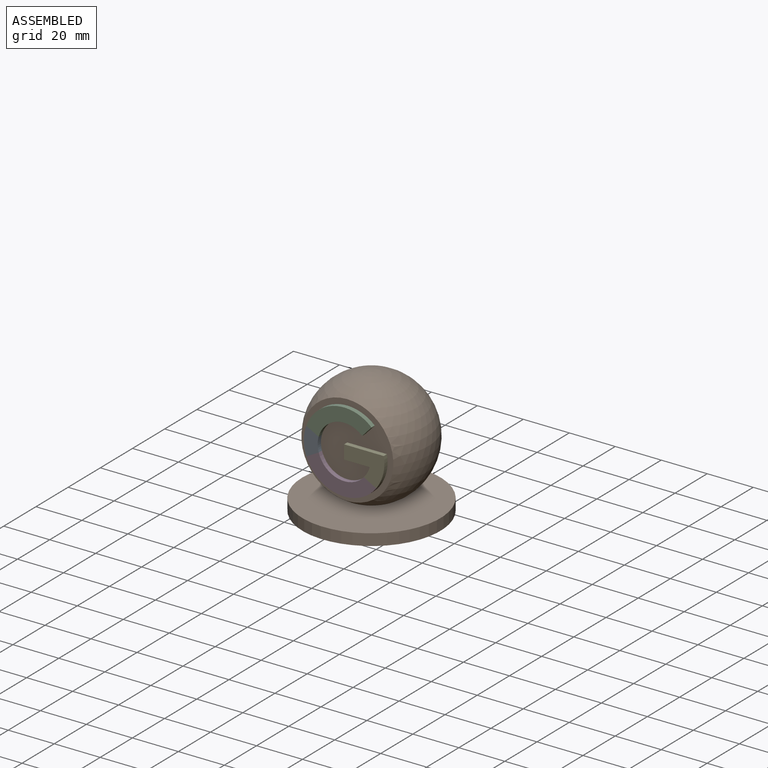
[diagram: assembled view]
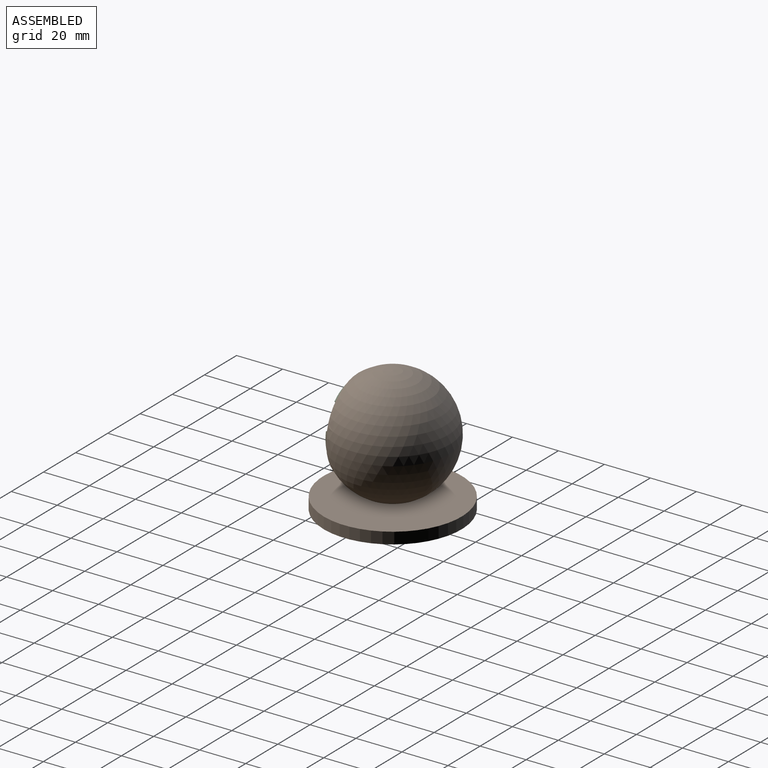
[diagram: assembled view, second angle]
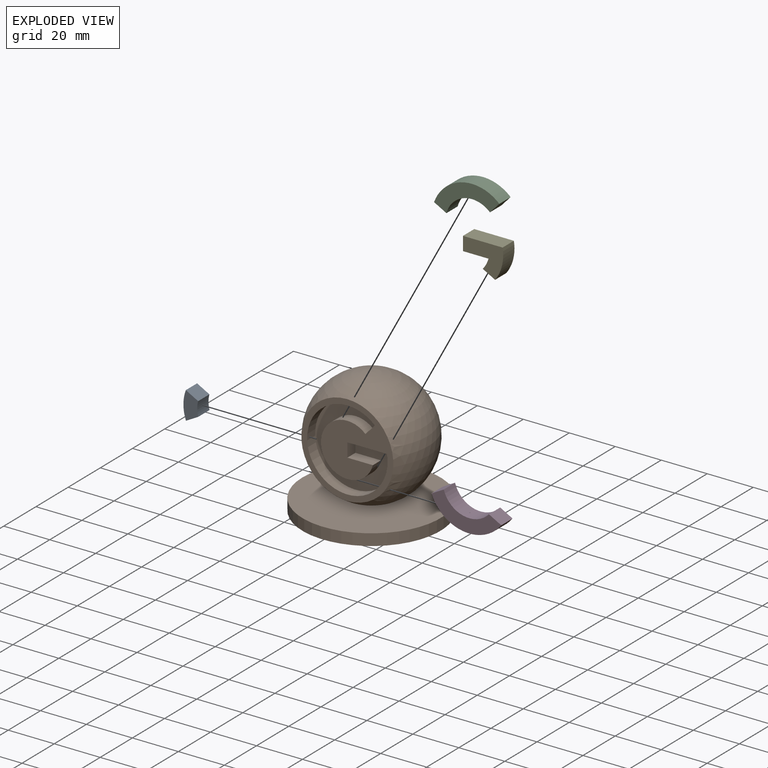
[diagram: exploded view]
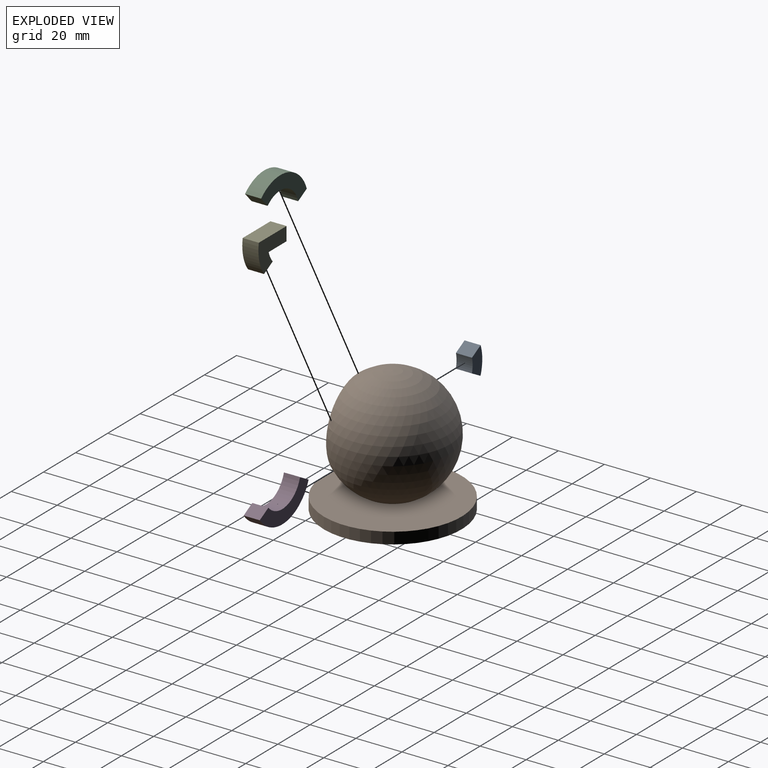
[diagram: exploded view, second angle]
ASSEMBLY  parts=5 mates=5
PART A: 6 faces, bbox 6.4x7x12 mm
  f0: plane 7x5.37mm, normal (0.48,0,0.88), area 42.7mm2, adj f1,f3,f4,f5
  f1: cylinder r=17.5mm len=12.03mm, axis (0,1,0), area 86mm2, adj f0,f2,f4,f5
  f2: plane 7x5.33mm, normal (0.49,0,-0.87), area 42.7mm2, adj f1,f3,f4,f5
  f3: cylinder r=11.5mm len=7mm, axis (0,1,0), area 43.6mm2, adj f0,f2,f4,f5
  f4: plane 12.03x6.44mm, normal (0,-1,0), area 55.6mm2, adj f0,f1,f2,f3
  f5: plane 12.03x6.44mm, normal (0,1,0), area 55.6mm2, adj f0,f1,f2,f3
PART B: 12 faces, bbox 60x60x54.5 mm
  f0: plane 40x40mm, normal (0,-1,0), area 695mm2, adj f1,f2,f3,f4,f5,f6,f7
  f1: sphere r=25mm, area 6203.8mm2, adj f0,f11
  f2: plane 17.24x5mm, normal (0,0,-1), area 86.2mm2, adj f0,f3,f7,f8
  f3: plane 6x5mm, normal (1,0,0), area 30mm2, adj f0,f2,f4,f8
  f4: plane 11.1x5mm, normal (0,0,1), area 55.5mm2, adj f0,f3,f5,f8
  f5: cylinder r=11.5mm len=23mm, axis (0,-1,0), area 298.9mm2, adj f0,f4,f6,f8
  f6: plane 5x4.39mm, normal (-0.73,0,0.68), area 30mm2, adj f0,f5,f7,f8
  f7: cylinder r=17.5mm len=35mm, axis (0,-1,0), area 493.1mm2, adj f0,f2,f6,f8
  f8: plane 35x35mm, normal (0,-1,0), area 561.6mm2, adj f2,f3,f4,f5,f6,f7
  f9: cylinder r=30mm len=60mm, axis (0,0,1), area 942.5mm2, adj f10,f11
  f10: plane 60x60mm, normal (0,0,-1), area 2827.4mm2, adj f9
  f11: plane 60x60mm, normal (0,0,1), area 2748.9mm2, adj f1,f9
PART C: 6 faces, bbox 28.4x7x14.5 mm
  f0: cylinder r=17.5mm len=28.41mm, axis (0,1,0), area 242.2mm2, adj f1,f3,f4,f5
  f1: plane 7x5.37mm, normal (-0.48,0,-0.88), area 42.7mm2, adj f0,f2,f4,f5
  f2: cylinder r=11.5mm len=18.94mm, axis (0,1,0), area 165.6mm2, adj f1,f3,f4,f5
  f3: plane 7x4.39mm, normal (0.73,0,-0.68), area 42mm2, adj f0,f2,f4,f5
  f4: plane 28.41x14.5mm, normal (0,-1,0), area 174.8mm2, adj f0,f1,f2,f3
  f5: plane 28.41x14.5mm, normal (0,1,0), area 174.8mm2, adj f0,f1,f2,f3
PART D: 6 faces, bbox 30.4x7x14.3 mm
  f0: plane 7x5.33mm, normal (-0.49,0,0.87), area 42.7mm2, adj f1,f3,f4,f5
  f1: cylinder r=17.5mm len=30.36mm, axis (0,1,0), area 261.8mm2, adj f0,f2,f4,f5
  f2: plane 7x5.37mm, normal (0.48,0,0.88), area 42.7mm2, adj f1,f3,f4,f5
  f3: cylinder r=11.5mm len=19.65mm, axis (0,1,0), area 172mm2, adj f0,f2,f4,f5
  f4: plane 30.36x14.34mm, normal (0,-1,0), area 185.9mm2, adj f0,f1,f2,f3
  f5: plane 30.36x14.34mm, normal (0,1,0), area 185.9mm2, adj f0,f1,f2,f3
PART E: 8 faces, bbox 17.5x7x13.5 mm
  f0: cylinder r=11.5mm len=7mm, axis (0,1,0), area 37.3mm2, adj f1,f5,f6,f7
  f1: plane 7x5.37mm, normal (-0.48,0,-0.88), area 42.7mm2, adj f0,f2,f6,f7
  f2: cylinder r=17.5mm len=13.55mm, axis (0,1,0), area 100.3mm2, adj f1,f3,f6,f7
  f3: plane 17.24x7mm, normal (0,0,1), area 120.7mm2, adj f2,f4,f6,f7
  f4: plane 7x6mm, normal (-1,0,0), area 42mm2, adj f3,f5,f6,f7
  f5: plane 11.1x7mm, normal (0,0,-1), area 77.7mm2, adj f0,f4,f6,f7
  f6: plane 17.5x13.55mm, normal (0,-1,0), area 145.4mm2, adj f0,f1,f2,f3,f4,f5
  f7: plane 17.5x13.55mm, normal (0,1,0), area 145.4mm2, adj f0,f1,f2,f3,f4,f5
PLACE A rot(axis=(0,-1,0),0deg) t=(0,-25,0)mm
PLACE B t=(0,-25,0)mm
PLACE C t=(0,-25,0)mm
PLACE D t=(0,-25,0)mm
PLACE E t=(0,-25,0)mm
MATE revolute B.f6 <-> C.f3  axis (-0.73,0,0.68) through (9.89,-10,35.1)mm
MATE revolute B.f5 <-> E.f2  axis (0,-1,0) through (0,-10,24.49)mm
MATE fastened A.f2 <-> D.f0  axis (0.49,0,-0.87) through (-13.72,-13.5,19.85)mm
MATE fastened E.f1 <-> D.f2  axis (-0.48,0,-0.88) through (11.28,-13.5,15.4)mm
MATE fastened A.f0 <-> C.f1  axis (0.48,0,0.88) through (-13.79,-13.5,28.95)mm
